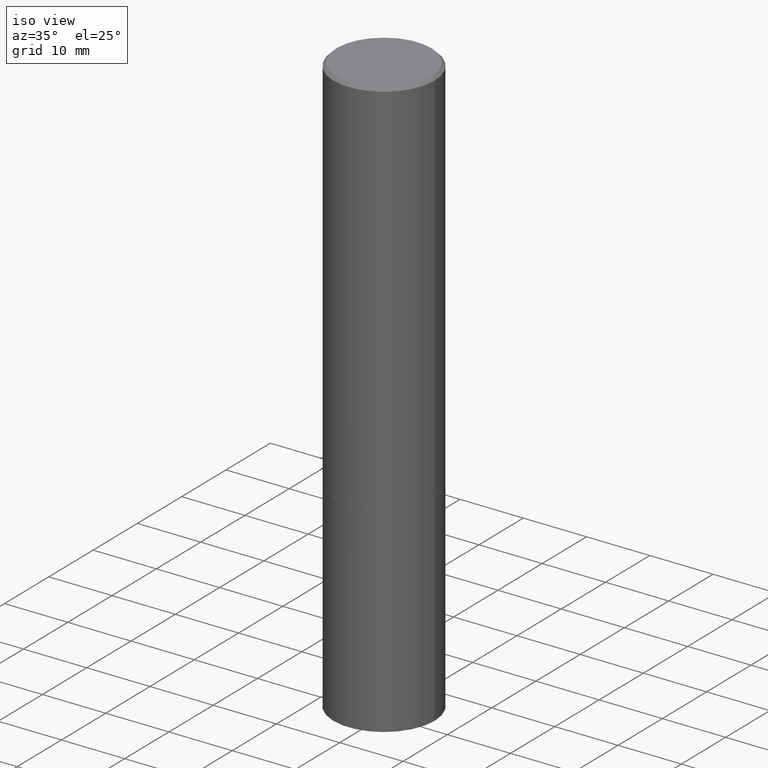
[diagram: clean part render]
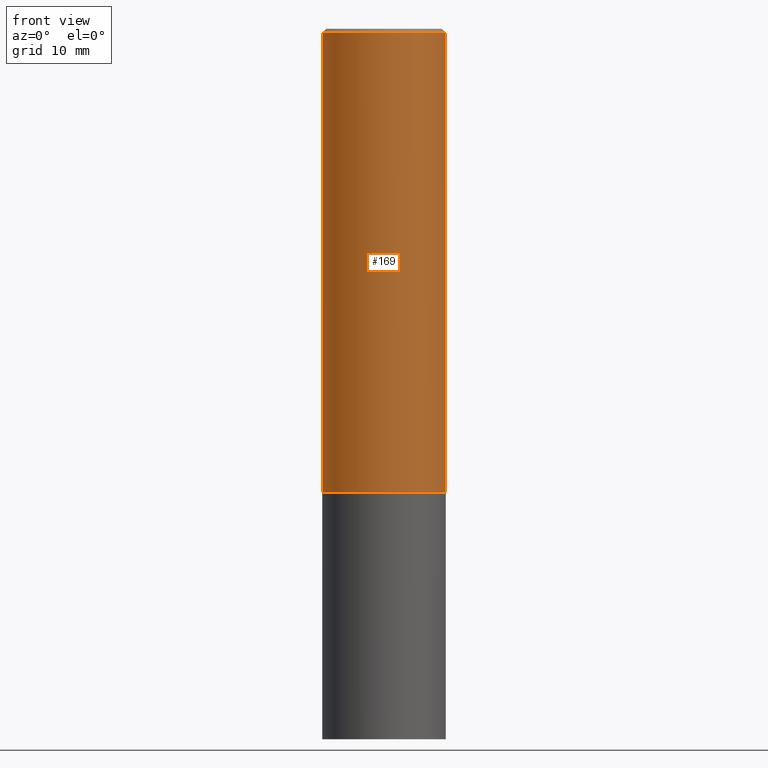
[diagram: tour spotlight — one face highlighted and labeled with its STEP entity id]
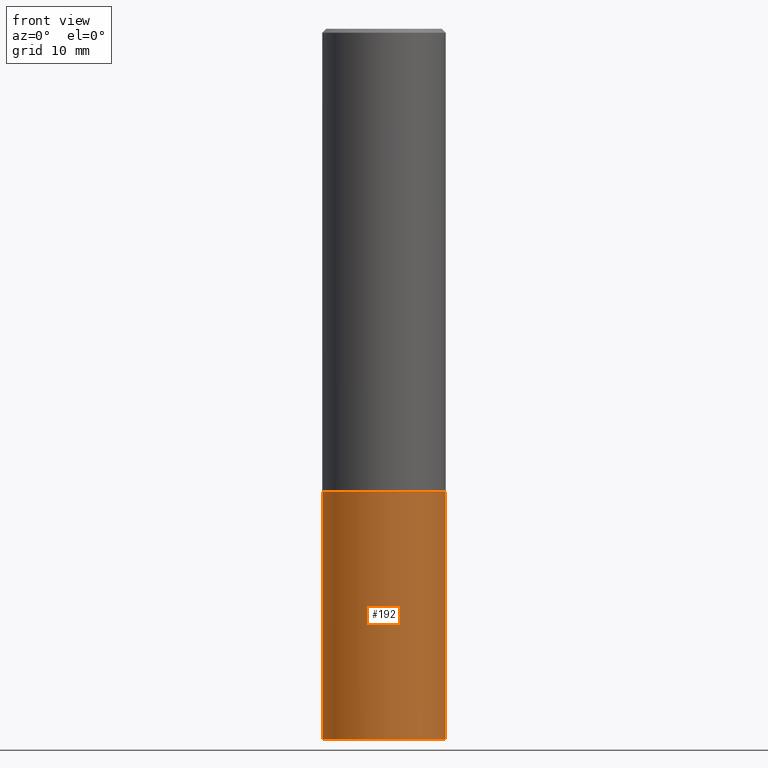
[diagram: tour spotlight — one face highlighted and labeled with its STEP entity id]
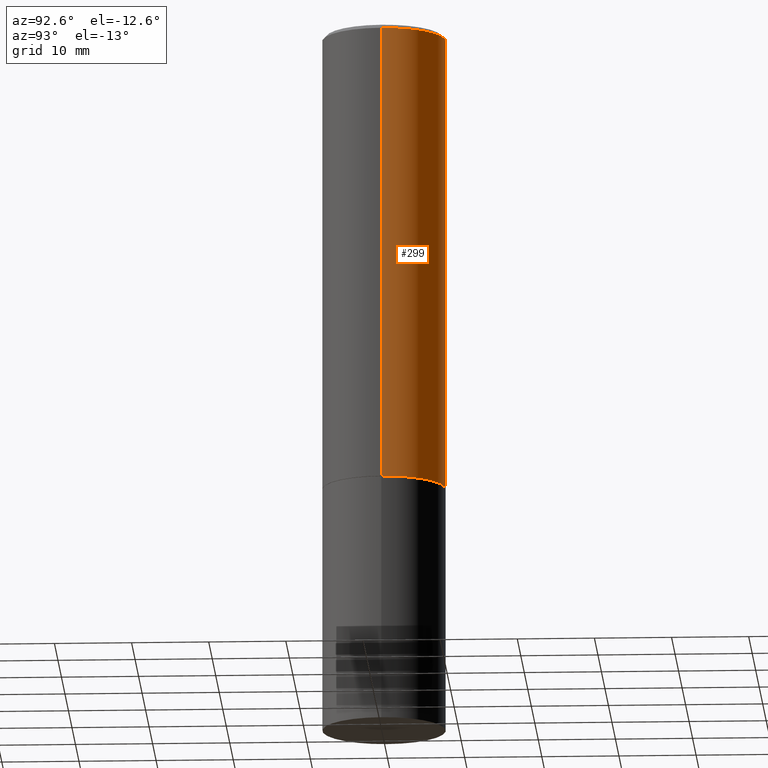
[diagram: tour spotlight — one face highlighted and labeled with its STEP entity id]
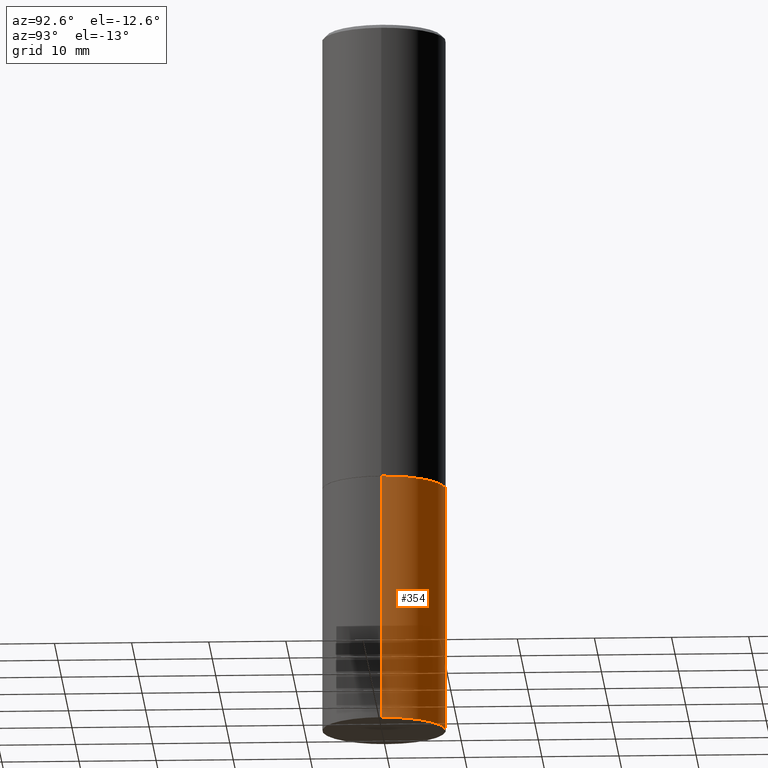
[diagram: tour spotlight — one face highlighted and labeled with its STEP entity id]
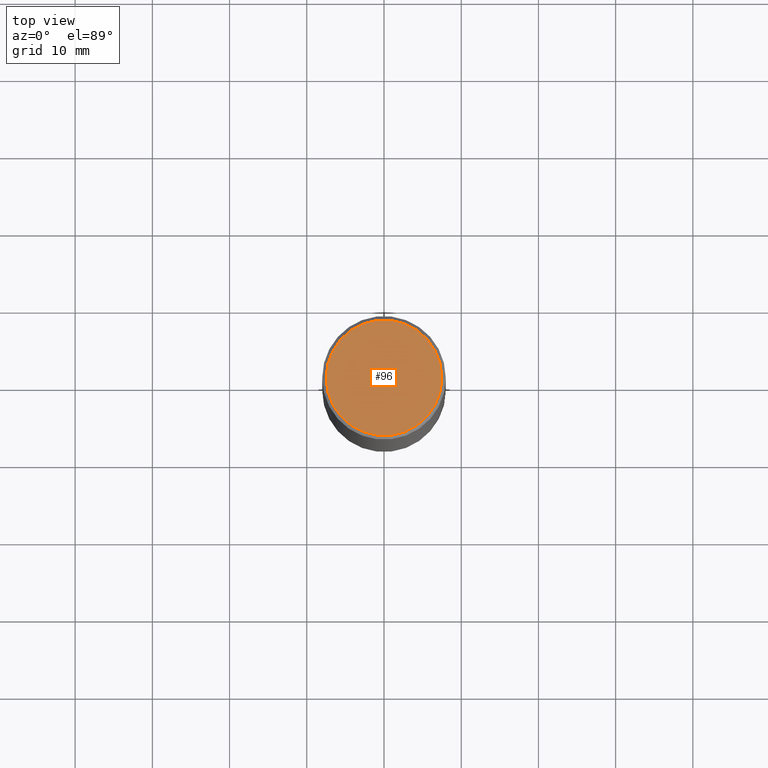
[diagram: tour spotlight — one face highlighted and labeled with its STEP entity id]
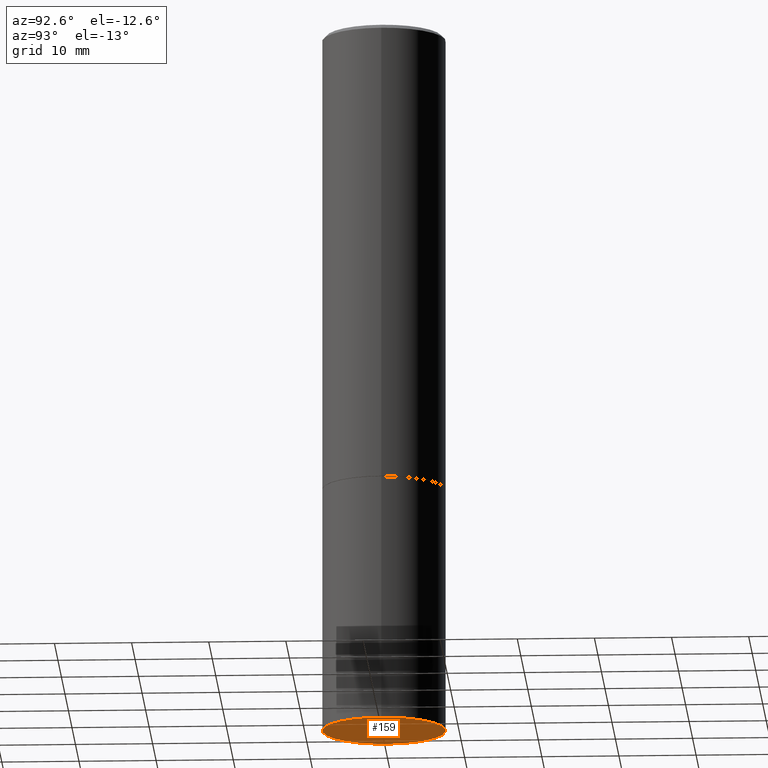
[diagram: tour spotlight — one face highlighted and labeled with its STEP entity id]
A machine part: a face-by-face anatomy tour. The part has 12 B-rep faces; the first image is the clean iso view, then the 6 largest visible faces are spotlighted one at a time (largest first), each with its STEP entity span.

Face 1 — front view, entity #169. In plain terms, the highlighted cylindrical surface (partial cylindrical patch) has radius 7.9997 mm, axis along (-0, 0, 1).
Definition (entity closure, byte-faithful):
#10 = EDGE_CURVE ( 'NONE', #138, #300, #213, .T. ) ;
#12 = LINE ( 'NONE', #353, #357 ) ;
#24 = ORIENTED_EDGE ( 'NONE', *, *, #10, .T. ) ;
#37 = AXIS2_PLACEMENT_3D ( 'NONE', #309, #63, #176 ) ;
#39 = EDGE_CURVE ( 'NONE', #138, #143, #232, .T. ) ;
#47 = DIRECTION ( 'NONE',  ( -2.445468806185136597E-29, 3.491481338843145583E-15, 1.000000000000000000 ) ) ;
#55 = CARTESIAN_POINT ( 'NONE',  ( 0.3149500000000000077, -1.044336983261372333E-14, -2.361199999999999743 ) ) ;
#63 = DIRECTION ( 'NONE',  ( -2.445468806185136597E-29, 3.491481338843145583E-15, 1.000000000000000000 ) ) ;
#68 = AXIS2_PLACEMENT_3D ( 'NONE', #234, #154, #71 ) ;
#71 = DIRECTION ( 'NONE',  ( 1.000000000000000000, -6.982962677686263555E-15, 0.000000000000000000 ) ) ;
#72 = EDGE_CURVE ( 'NONE', #143, #149, #345, .T. ) ;
#75 = DIRECTION ( 'NONE',  ( 1.000000000000000000, -6.982962677686265922E-15, 4.876176775795935232E-29 ) ) ;
#91 = EDGE_CURVE ( 'NONE', #300, #149, #12, .T. ) ;
#108 = DIRECTION ( 'NONE',  ( -2.445468806185136877E-29, 3.491481338843145188E-15, 1.000000000000000000 ) ) ;
#118 = ORIENTED_EDGE ( 'NONE', *, *, #72, .F. ) ;
#119 = ORIENTED_EDGE ( 'NONE', *, *, #39, .F. ) ;
#138 = VERTEX_POINT ( 'NONE', #292 ) ;
#143 = VERTEX_POINT ( 'NONE', #161 ) ;
#149 = VERTEX_POINT ( 'NONE', #294 ) ;
#154 = DIRECTION ( 'NONE',  ( -2.445468806185136597E-29, 3.491481338843145583E-15, 1.000000000000000000 ) ) ;
#161 = CARTESIAN_POINT ( 'NONE',  ( -0.3149499999999997302, 2.129454468560424601E-15, -0.02000000000000006287 ) ) ;
#169 = ADVANCED_FACE ( 'NONE', ( #211 ), #322, .T. ) ;
#176 = DIRECTION ( 'NONE',  ( 1.000000000000000000, -6.982962677686266711E-15, 0.000000000000000000 ) ) ;
#180 = EDGE_LOOP ( 'NONE', ( #119, #24, #312, #118 ) ) ;
#187 = CARTESIAN_POINT ( 'NONE',  ( 0.000000000000000000, 0.000000000000000000, 0.000000000000000000 ) ) ;
#211 = FACE_OUTER_BOUND ( 'NONE', #180, .T. ) ;
#213 = CIRCLE ( 'NONE', #68, 0.3149500000000000077 ) ;
#232 = LINE ( 'NONE', #346, #267 ) ;
#234 = CARTESIAN_POINT ( 'NONE',  ( 5.774240945164344150E-29, -8.244085737276433464E-15, -2.361199999999999743 ) ) ;
#267 = VECTOR ( 'NONE', #284, 39.37007874015748143 ) ;
#284 = DIRECTION ( 'NONE',  ( -2.445468806185136877E-29, 3.491481338843145188E-15, 1.000000000000000000 ) ) ;
#287 = AXIS2_PLACEMENT_3D ( 'NONE', #187, #47, #75 ) ;
#292 = CARTESIAN_POINT ( 'NONE',  ( -0.3149500000000000077, -1.919103335750211213E-15, -2.361199999999999743 ) ) ;
#294 = CARTESIAN_POINT ( 'NONE',  ( 0.3149499999999997302, -2.230543471175005478E-15, -0.02000000000000006287 ) ) ;
#300 = VERTEX_POINT ( 'NONE', #55 ) ;
#309 = CARTESIAN_POINT ( 'NONE',  ( 4.890937612370288923E-31, -6.982962677686312563E-17, -0.02000000000000006287 ) ) ;
#312 = ORIENTED_EDGE ( 'NONE', *, *, #91, .T. ) ;
#322 = CYLINDRICAL_SURFACE ( 'NONE', #287, 0.3149499999999998967 ) ;
#345 = CIRCLE ( 'NONE', #37, 0.3149499999999997302 ) ;
#346 = CARTESIAN_POINT ( 'NONE',  ( -0.3149499999999998967, 2.237854346276434801E-15, -1.549218606675782116E-29 ) ) ;
#353 = CARTESIAN_POINT ( 'NONE',  ( 0.3149499999999998967, -2.199284095337288688E-15, 1.535751875536929289E-29 ) ) ;
#357 = VECTOR ( 'NONE', #108, 39.37007874015748143 ) ;

Face 2 — front view, entity #192. In plain terms, the highlighted cylindrical surface (partial cylindrical patch) has radius 7.9997 mm, axis along (-0, 0, 1).
Definition (entity closure, byte-faithful):
#15 = DIRECTION ( 'NONE',  ( -2.445468806185136597E-29, 3.491481338843145583E-15, 1.000000000000000000 ) ) ;
#20 = CIRCLE ( 'NONE', #69, 0.3149500000000000077 ) ;
#26 = EDGE_CURVE ( 'NONE', #175, #366, #339, .T. ) ;
#33 = DIRECTION ( 'NONE',  ( -2.445468806185136877E-29, 3.491481338843145188E-15, 1.000000000000000000 ) ) ;
#42 = ORIENTED_EDGE ( 'NONE', *, *, #270, .T. ) ;
#43 = DIRECTION ( 'NONE',  ( -2.445468806185136597E-29, 3.491481338843145583E-15, 1.000000000000000000 ) ) ;
#50 = DIRECTION ( 'NONE',  ( 1.000000000000000000, -6.982962677686266711E-15, 4.876176775795936353E-29 ) ) ;
#57 = ORIENTED_EDGE ( 'NONE', *, *, #344, .F. ) ;
#69 = AXIS2_PLACEMENT_3D ( 'NONE', #137, #360, #327 ) ;
#77 = CARTESIAN_POINT ( 'NONE',  ( 0.000000000000000000, 0.000000000000000000, 0.000000000000000000 ) ) ;
#87 = ORIENTED_EDGE ( 'NONE', *, *, #186, .T. ) ;
#90 = AXIS2_PLACEMENT_3D ( 'NONE', #77, #15, #50 ) ;
#95 = VERTEX_POINT ( 'NONE', #216 ) ;
#101 = CARTESIAN_POINT ( 'NONE',  ( 0.3149500000000000077, -1.484542950462716186E-14, -3.621999999999999886 ) ) ;
#104 = FACE_OUTER_BOUND ( 'NONE', #301, .T. ) ;
#133 = VECTOR ( 'NONE', #215, 39.37007874015748143 ) ;
#137 = CARTESIAN_POINT ( 'NONE',  ( 5.776686413970529753E-29, -8.247577218615278049E-15, -2.362199999999999633 ) ) ;
#155 = CARTESIAN_POINT ( 'NONE',  ( -0.3149500000000000077, 2.237854346276435590E-15, -1.549218606675782676E-29 ) ) ;
#160 = LINE ( 'NONE', #297, #133 ) ;
#162 = CYLINDRICAL_SURFACE ( 'NONE', #90, 0.3149500000000000077 ) ;
#175 = VERTEX_POINT ( 'NONE', #296 ) ;
#186 = EDGE_CURVE ( 'NONE', #231, #95, #160, .T. ) ;
#192 = ADVANCED_FACE ( 'NONE', ( #104 ), #162, .T. ) ;
#215 = DIRECTION ( 'NONE',  ( -2.445468806185136877E-29, 3.491481338843145188E-15, 1.000000000000000000 ) ) ;
#216 = CARTESIAN_POINT ( 'NONE',  ( 0.3149500000000000077, -1.044686131395256792E-14, -2.362199999999999633 ) ) ;
#229 = ORIENTED_EDGE ( 'NONE', *, *, #26, .F. ) ;
#231 = VERTEX_POINT ( 'NONE', #101 ) ;
#258 = VECTOR ( 'NONE', #33, 39.37007874015748143 ) ;
#260 = CIRCLE ( 'NONE', #363, 0.3149500000000000077 ) ;
#270 = EDGE_CURVE ( 'NONE', #175, #231, #260, .T. ) ;
#291 = CARTESIAN_POINT ( 'NONE',  ( 8.857488016002564476E-29, -1.264614540928987199E-14, -3.621999999999999886 ) ) ;
#296 = CARTESIAN_POINT ( 'NONE',  ( -0.3149500000000000077, -8.209006967676139823E-15, -3.621999999999999886 ) ) ;
#297 = CARTESIAN_POINT ( 'NONE',  ( 0.3149500000000000077, -2.199284095337289871E-15, 1.535751875536930130E-29 ) ) ;
#301 = EDGE_LOOP ( 'NONE', ( #229, #42, #87, #57 ) ) ;
#327 = DIRECTION ( 'NONE',  ( 1.000000000000000000, -6.982962677686266711E-15, 0.000000000000000000 ) ) ;
#328 = CARTESIAN_POINT ( 'NONE',  ( -0.3149500000000000077, -8.209006967676139823E-15, -2.362199999999999633 ) ) ;
#339 = LINE ( 'NONE', #155, #258 ) ;
#344 = EDGE_CURVE ( 'NONE', #366, #95, #20, .T. ) ;
#347 = DIRECTION ( 'NONE',  ( 1.000000000000000000, -6.982962677686263555E-15, 0.000000000000000000 ) ) ;
#360 = DIRECTION ( 'NONE',  ( -2.445468806185136597E-29, 3.491481338843145583E-15, 1.000000000000000000 ) ) ;
#363 = AXIS2_PLACEMENT_3D ( 'NONE', #291, #43, #347 ) ;
#366 = VERTEX_POINT ( 'NONE', #328 ) ;

Face 3 — auxiliary view, entity #299. In plain terms, the highlighted cylindrical surface (partial cylindrical patch) has radius 7.9997 mm, axis along (-0, 0, 1).
Definition (entity closure, byte-faithful):
#12 = LINE ( 'NONE', #353, #357 ) ;
#31 = ORIENTED_EDGE ( 'NONE', *, *, #91, .F. ) ;
#39 = EDGE_CURVE ( 'NONE', #138, #143, #232, .T. ) ;
#54 = ORIENTED_EDGE ( 'NONE', *, *, #359, .F. ) ;
#55 = CARTESIAN_POINT ( 'NONE',  ( 0.3149500000000000077, -1.044336983261372333E-14, -2.361199999999999743 ) ) ;
#56 = FACE_OUTER_BOUND ( 'NONE', #227, .T. ) ;
#74 = DIRECTION ( 'NONE',  ( 1.000000000000000000, -6.982962677686263555E-15, 0.000000000000000000 ) ) ;
#79 = CARTESIAN_POINT ( 'NONE',  ( 4.890937612370288923E-31, -6.982962677686312563E-17, -0.02000000000000006287 ) ) ;
#91 = EDGE_CURVE ( 'NONE', #300, #149, #12, .T. ) ;
#99 = CIRCLE ( 'NONE', #196, 0.3149499999999997302 ) ;
#105 = EDGE_CURVE ( 'NONE', #300, #138, #123, .T. ) ;
#108 = DIRECTION ( 'NONE',  ( -2.445468806185136877E-29, 3.491481338843145188E-15, 1.000000000000000000 ) ) ;
#111 = DIRECTION ( 'NONE',  ( 1.000000000000000000, -6.982962677686266711E-15, 0.000000000000000000 ) ) ;
#112 = DIRECTION ( 'NONE',  ( -2.445468806185136597E-29, 3.491481338843145583E-15, 1.000000000000000000 ) ) ;
#113 = DIRECTION ( 'NONE',  ( 1.000000000000000000, -6.982962677686265922E-15, 4.876176775795935232E-29 ) ) ;
#123 = CIRCLE ( 'NONE', #249, 0.3149500000000000077 ) ;
#128 = CARTESIAN_POINT ( 'NONE',  ( 5.774240945164344150E-29, -8.244085737276433464E-15, -2.361199999999999743 ) ) ;
#138 = VERTEX_POINT ( 'NONE', #292 ) ;
#143 = VERTEX_POINT ( 'NONE', #161 ) ;
#149 = VERTEX_POINT ( 'NONE', #294 ) ;
#156 = DIRECTION ( 'NONE',  ( -2.445468806185136597E-29, 3.491481338843145583E-15, 1.000000000000000000 ) ) ;
#161 = CARTESIAN_POINT ( 'NONE',  ( -0.3149499999999997302, 2.129454468560424601E-15, -0.02000000000000006287 ) ) ;
#196 = AXIS2_PLACEMENT_3D ( 'NONE', #79, #197, #111 ) ;
#197 = DIRECTION ( 'NONE',  ( -2.445468806185136597E-29, 3.491481338843145583E-15, 1.000000000000000000 ) ) ;
#220 = CYLINDRICAL_SURFACE ( 'NONE', #336, 0.3149499999999998967 ) ;
#227 = EDGE_LOOP ( 'NONE', ( #306, #252, #54, #31 ) ) ;
#232 = LINE ( 'NONE', #346, #267 ) ;
#249 = AXIS2_PLACEMENT_3D ( 'NONE', #128, #156, #74 ) ;
#252 = ORIENTED_EDGE ( 'NONE', *, *, #39, .T. ) ;
#267 = VECTOR ( 'NONE', #284, 39.37007874015748143 ) ;
#276 = CARTESIAN_POINT ( 'NONE',  ( 0.000000000000000000, 0.000000000000000000, 0.000000000000000000 ) ) ;
#284 = DIRECTION ( 'NONE',  ( -2.445468806185136877E-29, 3.491481338843145188E-15, 1.000000000000000000 ) ) ;
#292 = CARTESIAN_POINT ( 'NONE',  ( -0.3149500000000000077, -1.919103335750211213E-15, -2.361199999999999743 ) ) ;
#294 = CARTESIAN_POINT ( 'NONE',  ( 0.3149499999999997302, -2.230543471175005478E-15, -0.02000000000000006287 ) ) ;
#299 = ADVANCED_FACE ( 'NONE', ( #56 ), #220, .T. ) ;
#300 = VERTEX_POINT ( 'NONE', #55 ) ;
#306 = ORIENTED_EDGE ( 'NONE', *, *, #105, .T. ) ;
#336 = AXIS2_PLACEMENT_3D ( 'NONE', #276, #112, #113 ) ;
#346 = CARTESIAN_POINT ( 'NONE',  ( -0.3149499999999998967, 2.237854346276434801E-15, -1.549218606675782116E-29 ) ) ;
#353 = CARTESIAN_POINT ( 'NONE',  ( 0.3149499999999998967, -2.199284095337288688E-15, 1.535751875536929289E-29 ) ) ;
#357 = VECTOR ( 'NONE', #108, 39.37007874015748143 ) ;
#359 = EDGE_CURVE ( 'NONE', #149, #143, #99, .T. ) ;

Face 4 — auxiliary view, entity #354. In plain terms, the highlighted cylindrical surface (partial cylindrical patch) has radius 7.9997 mm, axis along (-0, 0, 1).
Definition (entity closure, byte-faithful):
#17 = EDGE_CURVE ( 'NONE', #231, #175, #350, .T. ) ;
#26 = EDGE_CURVE ( 'NONE', #175, #366, #339, .T. ) ;
#33 = DIRECTION ( 'NONE',  ( -2.445468806185136877E-29, 3.491481338843145188E-15, 1.000000000000000000 ) ) ;
#61 = ORIENTED_EDGE ( 'NONE', *, *, #17, .T. ) ;
#73 = DIRECTION ( 'NONE',  ( -2.445468806185136597E-29, 3.491481338843145583E-15, 1.000000000000000000 ) ) ;
#81 = FACE_OUTER_BOUND ( 'NONE', #195, .T. ) ;
#82 = CARTESIAN_POINT ( 'NONE',  ( 0.000000000000000000, 0.000000000000000000, 0.000000000000000000 ) ) ;
#95 = VERTEX_POINT ( 'NONE', #216 ) ;
#101 = CARTESIAN_POINT ( 'NONE',  ( 0.3149500000000000077, -1.484542950462716186E-14, -3.621999999999999886 ) ) ;
#115 = DIRECTION ( 'NONE',  ( 1.000000000000000000, -6.982962677686266711E-15, 4.876176775795936353E-29 ) ) ;
#126 = CARTESIAN_POINT ( 'NONE',  ( 8.857488016002564476E-29, -1.264614540928987199E-14, -3.621999999999999886 ) ) ;
#133 = VECTOR ( 'NONE', #215, 39.37007874015748143 ) ;
#144 = CYLINDRICAL_SURFACE ( 'NONE', #302, 0.3149500000000000077 ) ;
#155 = CARTESIAN_POINT ( 'NONE',  ( -0.3149500000000000077, 2.237854346276435590E-15, -1.549218606675782676E-29 ) ) ;
#160 = LINE ( 'NONE', #297, #133 ) ;
#163 = CARTESIAN_POINT ( 'NONE',  ( 5.776686413970529753E-29, -8.247577218615278049E-15, -2.362199999999999633 ) ) ;
#175 = VERTEX_POINT ( 'NONE', #296 ) ;
#186 = EDGE_CURVE ( 'NONE', #231, #95, #160, .T. ) ;
#189 = DIRECTION ( 'NONE',  ( 1.000000000000000000, -6.982962677686266711E-15, 0.000000000000000000 ) ) ;
#193 = DIRECTION ( 'NONE',  ( -2.445468806185136597E-29, 3.491481338843145583E-15, 1.000000000000000000 ) ) ;
#195 = EDGE_LOOP ( 'NONE', ( #61, #246, #290, #224 ) ) ;
#205 = DIRECTION ( 'NONE',  ( -2.445468806185136597E-29, 3.491481338843145583E-15, 1.000000000000000000 ) ) ;
#215 = DIRECTION ( 'NONE',  ( -2.445468806185136877E-29, 3.491481338843145188E-15, 1.000000000000000000 ) ) ;
#216 = CARTESIAN_POINT ( 'NONE',  ( 0.3149500000000000077, -1.044686131395256792E-14, -2.362199999999999633 ) ) ;
#222 = CIRCLE ( 'NONE', #282, 0.3149500000000000077 ) ;
#224 = ORIENTED_EDGE ( 'NONE', *, *, #186, .F. ) ;
#231 = VERTEX_POINT ( 'NONE', #101 ) ;
#233 = EDGE_CURVE ( 'NONE', #95, #366, #222, .T. ) ;
#246 = ORIENTED_EDGE ( 'NONE', *, *, #26, .T. ) ;
#257 = DIRECTION ( 'NONE',  ( 1.000000000000000000, -6.982962677686263555E-15, 0.000000000000000000 ) ) ;
#258 = VECTOR ( 'NONE', #33, 39.37007874015748143 ) ;
#282 = AXIS2_PLACEMENT_3D ( 'NONE', #163, #73, #189 ) ;
#290 = ORIENTED_EDGE ( 'NONE', *, *, #233, .F. ) ;
#296 = CARTESIAN_POINT ( 'NONE',  ( -0.3149500000000000077, -8.209006967676139823E-15, -3.621999999999999886 ) ) ;
#297 = CARTESIAN_POINT ( 'NONE',  ( 0.3149500000000000077, -2.199284095337289871E-15, 1.535751875536930130E-29 ) ) ;
#302 = AXIS2_PLACEMENT_3D ( 'NONE', #82, #193, #115 ) ;
#328 = CARTESIAN_POINT ( 'NONE',  ( -0.3149500000000000077, -8.209006967676139823E-15, -2.362199999999999633 ) ) ;
#332 = AXIS2_PLACEMENT_3D ( 'NONE', #126, #205, #257 ) ;
#339 = LINE ( 'NONE', #155, #258 ) ;
#350 = CIRCLE ( 'NONE', #332, 0.3149500000000000077 ) ;
#354 = ADVANCED_FACE ( 'NONE', ( #81 ), #144, .T. ) ;
#366 = VERTEX_POINT ( 'NONE', #328 ) ;

Face 5 — top view, entity #96. In plain terms, the highlighted planar face has unit normal (0, -0, -1).
Definition (entity closure, byte-faithful):
#1 = ORIENTED_EDGE ( 'NONE', *, *, #317, .T. ) ;
#18 = DIRECTION ( 'NONE',  ( -2.445468806185136597E-29, 3.491481338843145583E-15, 1.000000000000000000 ) ) ;
#27 = CARTESIAN_POINT ( 'NONE',  ( -2.087702828670439639E-46, 2.980686340760894400E-32, 8.537024980200822558E-18 ) ) ;
#35 = EDGE_LOOP ( 'NONE', ( #146, #1 ) ) ;
#44 = AXIS2_PLACEMENT_3D ( 'NONE', #274, #76, #190 ) ;
#65 = VERTEX_POINT ( 'NONE', #89 ) ;
#76 = DIRECTION ( 'NONE',  ( -2.445468806185136597E-29, 3.491481338843145583E-15, 1.000000000000000000 ) ) ;
#84 = VERTEX_POINT ( 'NONE', #241 ) ;
#89 = CARTESIAN_POINT ( 'NONE',  ( -0.2949499999999997124, 2.094539655171993740E-15, 8.537024980186296424E-18 ) ) ;
#96 = ADVANCED_FACE ( 'NONE', ( #103 ), #326, .F. ) ;
#103 = FACE_OUTER_BOUND ( 'NONE', #35, .T. ) ;
#120 = EDGE_CURVE ( 'NONE', #65, #84, #181, .T. ) ;
#134 = DIRECTION ( 'NONE',  ( -1.000000000000000000, 6.982962677686265922E-15, -4.876176775795935793E-29 ) ) ;
#136 = DIRECTION ( 'NONE',  ( 2.438088387897960049E-29, -3.491481338843145188E-15, -1.000000000000000000 ) ) ;
#139 = AXIS2_PLACEMENT_3D ( 'NONE', #27, #18, #356 ) ;
#146 = ORIENTED_EDGE ( 'NONE', *, *, #120, .T. ) ;
#181 = CIRCLE ( 'NONE', #44, 0.2949499999999997124 ) ;
#188 = CIRCLE ( 'NONE', #139, 0.2949499999999997124 ) ;
#190 = DIRECTION ( 'NONE',  ( 1.000000000000000000, -6.982962677686267499E-15, 4.876053491004739391E-29 ) ) ;
#240 = AXIS2_PLACEMENT_3D ( 'NONE', #325, #136, #134 ) ;
#241 = CARTESIAN_POINT ( 'NONE',  ( 0.2949499999999997124, -2.127023677808858103E-15, 8.537024980215462707E-18 ) ) ;
#274 = CARTESIAN_POINT ( 'NONE',  ( -2.087702828670439639E-46, 2.980686340760894400E-32, 8.537024980200822558E-18 ) ) ;
#317 = EDGE_CURVE ( 'NONE', #84, #65, #188, .T. ) ;
#325 = CARTESIAN_POINT ( 'NONE',  ( 2.059624841783562091E-15, 0.2949499999999997124, -1.025543908401684366E-15 ) ) ;
#326 = PLANE ( 'NONE',  #240 ) ;
#356 = DIRECTION ( 'NONE',  ( 1.000000000000000000, -6.982962677686267499E-15, 4.876053491004739391E-29 ) ) ;

Face 6 — auxiliary view, entity #159. In plain terms, the highlighted planar face has unit normal (0, -0, -1).
Definition (entity closure, byte-faithful):
#11 = CARTESIAN_POINT ( 'NONE',  ( 2.199284095337378223E-15, 0.3149499999999873512, -3.622000000000000774 ) ) ;
#14 = DIRECTION ( 'NONE',  ( -1.000000000000000000, 6.982962677686265922E-15, -4.876176775795935793E-29 ) ) ;
#16 = FACE_OUTER_BOUND ( 'NONE', #173, .T. ) ;
#17 = EDGE_CURVE ( 'NONE', #231, #175, #350, .T. ) ;
#43 = DIRECTION ( 'NONE',  ( -2.445468806185136597E-29, 3.491481338843145583E-15, 1.000000000000000000 ) ) ;
#101 = CARTESIAN_POINT ( 'NONE',  ( 0.3149500000000000077, -1.484542950462716186E-14, -3.621999999999999886 ) ) ;
#126 = CARTESIAN_POINT ( 'NONE',  ( 8.857488016002564476E-29, -1.264614540928987199E-14, -3.621999999999999886 ) ) ;
#159 = ADVANCED_FACE ( 'NONE', ( #16 ), #271, .T. ) ;
#173 = EDGE_LOOP ( 'NONE', ( #361, #254 ) ) ;
#175 = VERTEX_POINT ( 'NONE', #296 ) ;
#205 = DIRECTION ( 'NONE',  ( -2.445468806185136597E-29, 3.491481338843145583E-15, 1.000000000000000000 ) ) ;
#231 = VERTEX_POINT ( 'NONE', #101 ) ;
#254 = ORIENTED_EDGE ( 'NONE', *, *, #270, .F. ) ;
#257 = DIRECTION ( 'NONE',  ( 1.000000000000000000, -6.982962677686263555E-15, 0.000000000000000000 ) ) ;
#260 = CIRCLE ( 'NONE', #363, 0.3149500000000000077 ) ;
#269 = DIRECTION ( 'NONE',  ( 2.438088387897960049E-29, -3.491481338843145188E-15, -1.000000000000000000 ) ) ;
#270 = EDGE_CURVE ( 'NONE', #175, #231, #260, .T. ) ;
#271 = PLANE ( 'NONE',  #298 ) ;
#291 = CARTESIAN_POINT ( 'NONE',  ( 8.857488016002564476E-29, -1.264614540928987199E-14, -3.621999999999999886 ) ) ;
#296 = CARTESIAN_POINT ( 'NONE',  ( -0.3149500000000000077, -8.209006967676139823E-15, -3.621999999999999886 ) ) ;
#298 = AXIS2_PLACEMENT_3D ( 'NONE', #11, #269, #14 ) ;
#332 = AXIS2_PLACEMENT_3D ( 'NONE', #126, #205, #257 ) ;
#347 = DIRECTION ( 'NONE',  ( 1.000000000000000000, -6.982962677686263555E-15, 0.000000000000000000 ) ) ;
#350 = CIRCLE ( 'NONE', #332, 0.3149500000000000077 ) ;
#361 = ORIENTED_EDGE ( 'NONE', *, *, #17, .F. ) ;
#363 = AXIS2_PLACEMENT_3D ( 'NONE', #291, #43, #347 ) ;